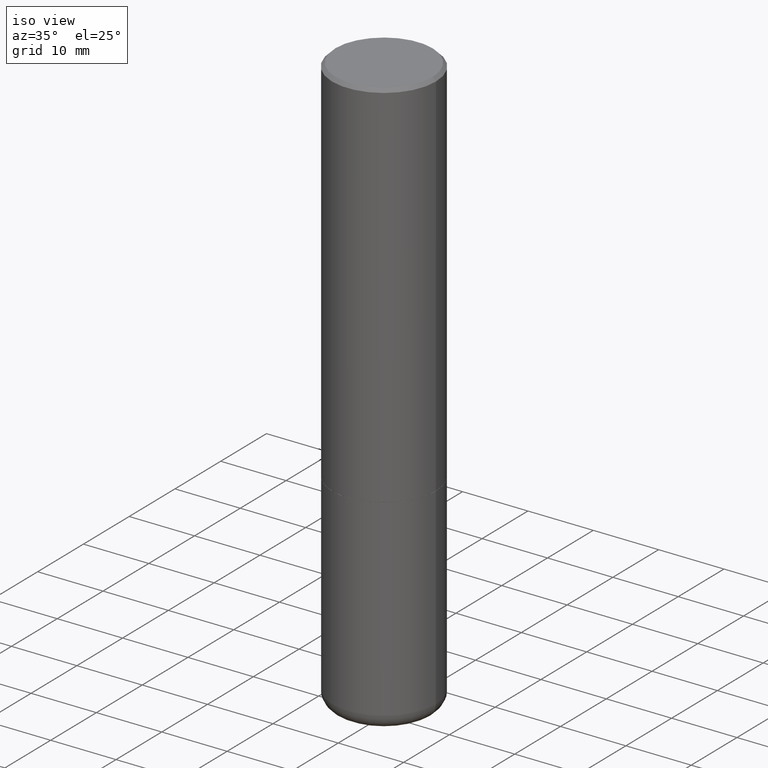
[diagram: clean part render]
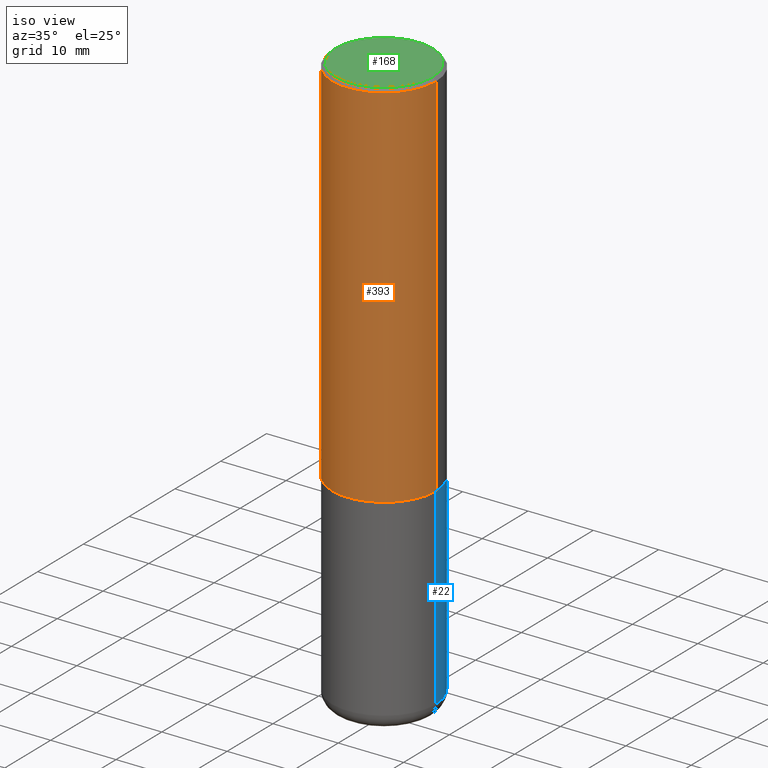
[diagram: same view with three faces highlighted in distinct colors, each labeled with its STEP entity id]
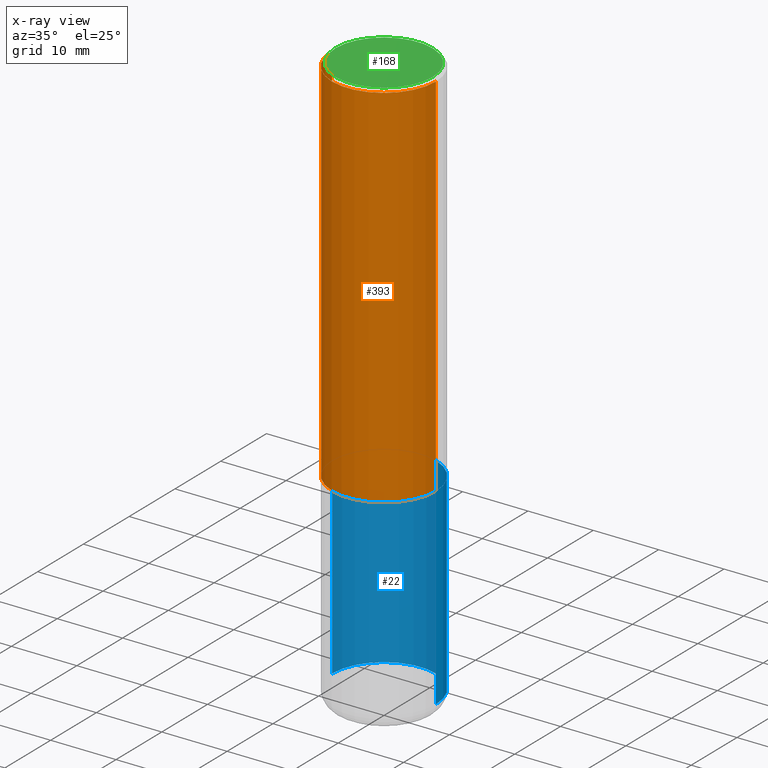
[diagram: x-ray of the same camera — body ghosted, the three highlighted faces saturated]
A machine part, iso view with three faces highlighted in distinct colors.
The next image is the same camera in x-ray (body ghosted, the three faces saturated) — at least one of them is partly hidden behind the body in this view.
Their STEP definitions:

[orange] entity #393 — the highlighted cylindrical surface (partial cylindrical patch) has radius 7.9375 mm, axis along (-0, 0, 1).
#17 = DIRECTION ( 'NONE',  ( -2.445468806185136597E-29, 3.491481338843145583E-15, 1.000000000000000000 ) ) ;
#34 = DIRECTION ( 'NONE',  ( -2.445468806185136877E-29, 3.491481338843145188E-15, 1.000000000000000000 ) ) ;
#44 = CARTESIAN_POINT ( 'NONE',  ( 5.499859345110370619E-29, -7.852341531058232286E-15, -2.248999999999999222 ) ) ;
#53 = FACE_OUTER_BOUND ( 'NONE', #336, .T. ) ;
#55 = DIRECTION ( 'NONE',  ( 1.000000000000000000, -6.982962677686269077E-15, 0.000000000000000000 ) ) ;
#59 = DIRECTION ( 'NONE',  ( -2.445468806185136597E-29, 3.491481338843145583E-15, 1.000000000000000000 ) ) ;
#64 = VECTOR ( 'NONE', #34, 39.37007874015748143 ) ;
#87 = VERTEX_POINT ( 'NONE', #170 ) ;
#101 = VECTOR ( 'NONE', #345, 39.37007874015748143 ) ;
#105 = LINE ( 'NONE', #201, #64 ) ;
#145 = CARTESIAN_POINT ( 'NONE',  ( -0.3125000000000000000, -1.740639529667232739E-15, -2.248999999999999222 ) ) ;
#158 = VERTEX_POINT ( 'NONE', #266 ) ;
#169 = ORIENTED_EDGE ( 'NONE', *, *, #225, .F. ) ;
#170 = CARTESIAN_POINT ( 'NONE',  ( 0.3125000000000000000, -1.003451736783519063E-14, -2.248999999999999222 ) ) ;
#179 = CYLINDRICAL_SURFACE ( 'NONE', #316, 0.3124999999999998890 ) ;
#201 = CARTESIAN_POINT ( 'NONE',  ( -0.3124999999999998890, 2.220446049250312292E-15, -1.537167215704657391E-29 ) ) ;
#209 = VERTEX_POINT ( 'NONE', #232 ) ;
#225 = EDGE_CURVE ( 'NONE', #370, #158, #105, .T. ) ;
#232 = CARTESIAN_POINT ( 'NONE',  ( 0.3124999999999998335, -2.213735251080465334E-15, -0.02000000000000002123 ) ) ;
#240 = ORIENTED_EDGE ( 'NONE', *, *, #251, .T. ) ;
#241 = CARTESIAN_POINT ( 'NONE',  ( 0.3124999999999998890, -2.182175836776957558E-15, 1.523805242436229235E-29 ) ) ;
#248 = DIRECTION ( 'NONE',  ( -2.445468806185136597E-29, 3.491481338843145583E-15, 1.000000000000000000 ) ) ;
#251 = EDGE_CURVE ( 'NONE', #87, #209, #412, .T. ) ;
#256 = EDGE_CURVE ( 'NONE', #370, #87, #332, .T. ) ;
#260 = CARTESIAN_POINT ( 'NONE',  ( 4.890937612370278413E-31, -6.982962677686297772E-17, -0.02000000000000002123 ) ) ;
#266 = CARTESIAN_POINT ( 'NONE',  ( -0.3124999999999998335, 2.112346210000093866E-15, -0.02000000000000002123 ) ) ;
#285 = DIRECTION ( 'NONE',  ( 1.000000000000000000, -6.982962677686265133E-15, 0.000000000000000000 ) ) ;
#298 = CIRCLE ( 'NONE', #378, 0.3124999999999998335 ) ;
#300 = ORIENTED_EDGE ( 'NONE', *, *, #256, .T. ) ;
#316 = AXIS2_PLACEMENT_3D ( 'NONE', #317, #17, #325 ) ;
#317 = CARTESIAN_POINT ( 'NONE',  ( 0.000000000000000000, 0.000000000000000000, 0.000000000000000000 ) ) ;
#325 = DIRECTION ( 'NONE',  ( 1.000000000000000000, -6.982962677686266711E-15, 4.876176775795935232E-29 ) ) ;
#329 = EDGE_CURVE ( 'NONE', #158, #209, #298, .T. ) ;
#332 = CIRCLE ( 'NONE', #352, 0.3125000000000000000 ) ;
#336 = EDGE_LOOP ( 'NONE', ( #169, #300, #240, #342 ) ) ;
#342 = ORIENTED_EDGE ( 'NONE', *, *, #329, .F. ) ;
#345 = DIRECTION ( 'NONE',  ( -2.445468806185136877E-29, 3.491481338843145188E-15, 1.000000000000000000 ) ) ;
#352 = AXIS2_PLACEMENT_3D ( 'NONE', #44, #248, #55 ) ;
#370 = VERTEX_POINT ( 'NONE', #145 ) ;
#378 = AXIS2_PLACEMENT_3D ( 'NONE', #260, #59, #285 ) ;
#393 = ADVANCED_FACE ( 'NONE', ( #53 ), #179, .T. ) ;
#412 = LINE ( 'NONE', #241, #101 ) ;

[blue] entity #22 — the highlighted cylindrical surface (partial cylindrical patch) has radius 7.9375 mm, axis along (-0, 0, 1).
#3 = CARTESIAN_POINT ( 'NONE',  ( 0.3125000000000001665, -2.182175836776959530E-15, 1.523805242436230636E-29 ) ) ;
#12 = VERTEX_POINT ( 'NONE', #175 ) ;
#22 = ADVANCED_FACE ( 'NONE', ( #385 ), #356, .T. ) ;
#29 = DIRECTION ( 'NONE',  ( 1.000000000000000000, -6.982962677686265133E-15, 0.000000000000000000 ) ) ;
#35 = ORIENTED_EDGE ( 'NONE', *, *, #115, .F. ) ;
#40 = DIRECTION ( 'NONE',  ( -2.445468806185136877E-29, 3.491481338843145188E-15, 1.000000000000000000 ) ) ;
#41 = CIRCLE ( 'NONE', #416, 0.3125000000000000000 ) ;
#46 = CARTESIAN_POINT ( 'NONE',  ( -0.3125000000000000000, -7.660661462598133760E-15, -2.249999999999999556 ) ) ;
#48 = ORIENTED_EDGE ( 'NONE', *, *, #152, .T. ) ;
#49 = DIRECTION ( 'NONE',  ( -2.445468806185136597E-29, 3.491481338843145583E-15, 1.000000000000000000 ) ) ;
#71 = CIRCLE ( 'NONE', #243, 0.3125000000000002776 ) ;
#73 = VERTEX_POINT ( 'NONE', #46 ) ;
#82 = VERTEX_POINT ( 'NONE', #381 ) ;
#99 = AXIS2_PLACEMENT_3D ( 'NONE', #428, #301, #272 ) ;
#100 = LINE ( 'NONE', #371, #365 ) ;
#107 = VECTOR ( 'NONE', #310, 39.37007874015748143 ) ;
#115 = EDGE_CURVE ( 'NONE', #82, #197, #233, .T. ) ;
#133 = EDGE_LOOP ( 'NONE', ( #221, #48, #171, #35 ) ) ;
#144 = EDGE_CURVE ( 'NONE', #82, #12, #71, .T. ) ;
#152 = EDGE_CURVE ( 'NONE', #12, #73, #100, .T. ) ;
#171 = ORIENTED_EDGE ( 'NONE', *, *, #190, .F. ) ;
#175 = CARTESIAN_POINT ( 'NONE',  ( -0.3125000000000002776, -7.660661462598130604E-15, -3.410123341872087543 ) ) ;
#190 = EDGE_CURVE ( 'NONE', #197, #73, #41, .T. ) ;
#192 = CARTESIAN_POINT ( 'NONE',  ( 0.3125000000000000000, -1.003800884917403364E-14, -2.249999999999999556 ) ) ;
#197 = VERTEX_POINT ( 'NONE', #192 ) ;
#221 = ORIENTED_EDGE ( 'NONE', *, *, #144, .T. ) ;
#233 = LINE ( 'NONE', #3, #107 ) ;
#243 = AXIS2_PLACEMENT_3D ( 'NONE', #349, #49, #408 ) ;
#272 = DIRECTION ( 'NONE',  ( 1.000000000000000000, -6.982962677686266711E-15, 4.876176775795935232E-29 ) ) ;
#301 = DIRECTION ( 'NONE',  ( -2.445468806185136597E-29, 3.491481338843145583E-15, 1.000000000000000000 ) ) ;
#310 = DIRECTION ( 'NONE',  ( -2.445468806185136877E-29, 3.491481338843145188E-15, 1.000000000000000000 ) ) ;
#349 = CARTESIAN_POINT ( 'NONE',  ( 8.339350257792001869E-29, -1.190638201129981839E-14, -3.410123341872087543 ) ) ;
#356 = CYLINDRICAL_SURFACE ( 'NONE', #99, 0.3125000000000001665 ) ;
#365 = VECTOR ( 'NONE', #40, 39.37007874015748143 ) ;
#371 = CARTESIAN_POINT ( 'NONE',  ( -0.3125000000000001665, 2.220446049250314264E-15, -1.537167215704658792E-29 ) ) ;
#375 = CARTESIAN_POINT ( 'NONE',  ( 5.502304813916556222E-29, -7.855833012397075293E-15, -2.249999999999999556 ) ) ;
#381 = CARTESIAN_POINT ( 'NONE',  ( 0.3125000000000002776, -1.408855784807677831E-14, -3.410123341872087543 ) ) ;
#385 = FACE_OUTER_BOUND ( 'NONE', #133, .T. ) ;
#397 = DIRECTION ( 'NONE',  ( -2.445468806185136597E-29, 3.491481338843145583E-15, 1.000000000000000000 ) ) ;
#408 = DIRECTION ( 'NONE',  ( 1.000000000000000000, -6.982962677686269077E-15, 0.000000000000000000 ) ) ;
#416 = AXIS2_PLACEMENT_3D ( 'NONE', #375, #397, #29 ) ;
#428 = CARTESIAN_POINT ( 'NONE',  ( 0.000000000000000000, 0.000000000000000000, 0.000000000000000000 ) ) ;

[green] entity #168 — the highlighted planar face has unit normal (0, -0, -1).
#8 = VERTEX_POINT ( 'NONE', #276 ) ;
#45 = ORIENTED_EDGE ( 'NONE', *, *, #228, .T. ) ;
#75 = VERTEX_POINT ( 'NONE', #242 ) ;
#83 = DIRECTION ( 'NONE',  ( -2.445468806185136597E-29, 3.491481338843145583E-15, 1.000000000000000000 ) ) ;
#116 = AXIS2_PLACEMENT_3D ( 'NONE', #127, #306, #339 ) ;
#117 = ORIENTED_EDGE ( 'NONE', *, *, #135, .T. ) ;
#127 = CARTESIAN_POINT ( 'NONE',  ( -1.043851414335219820E-46, 1.490343170380447200E-32, 4.268512490100411279E-18 ) ) ;
#135 = EDGE_CURVE ( 'NONE', #75, #8, #156, .T. ) ;
#138 = AXIS2_PLACEMENT_3D ( 'NONE', #163, #368, #407 ) ;
#156 = CIRCLE ( 'NONE', #358, 0.2924999999999998157 ) ;
#163 = CARTESIAN_POINT ( 'NONE',  ( 2.042516583223231356E-15, 0.2924999999999998157, -1.019124035366569212E-15 ) ) ;
#168 = ADVANCED_FACE ( 'NONE', ( #399 ), #269, .F. ) ;
#205 = DIRECTION ( 'NONE',  ( 1.000000000000000000, -6.982962677686266711E-15, 4.876067333457692840E-29 ) ) ;
#228 = EDGE_CURVE ( 'NONE', #8, #75, #249, .T. ) ;
#242 = CARTESIAN_POINT ( 'NONE',  ( -0.2924999999999998157, 2.077431396611662611E-15, 4.268512490086005323E-18 ) ) ;
#249 = CIRCLE ( 'NONE', #116, 0.2924999999999998157 ) ;
#269 = PLANE ( 'NONE',  #138 ) ;
#276 = CARTESIAN_POINT ( 'NONE',  ( 0.2924999999999998157, -2.110215457714318748E-15, 4.268512490114932791E-18 ) ) ;
#306 = DIRECTION ( 'NONE',  ( -2.445468806185136597E-29, 3.491481338843145583E-15, 1.000000000000000000 ) ) ;
#311 = EDGE_LOOP ( 'NONE', ( #117, #45 ) ) ;
#339 = DIRECTION ( 'NONE',  ( 1.000000000000000000, -6.982962677686266711E-15, 4.876067333457692840E-29 ) ) ;
#358 = AXIS2_PLACEMENT_3D ( 'NONE', #382, #83, #205 ) ;
#368 = DIRECTION ( 'NONE',  ( 2.438088387897960049E-29, -3.491481338843145188E-15, -1.000000000000000000 ) ) ;
#382 = CARTESIAN_POINT ( 'NONE',  ( -1.043851414335219820E-46, 1.490343170380447200E-32, 4.268512490100411279E-18 ) ) ;
#399 = FACE_OUTER_BOUND ( 'NONE', #311, .T. ) ;
#407 = DIRECTION ( 'NONE',  ( -1.000000000000000000, 6.982962677686265922E-15, -4.876176775795935793E-29 ) ) ;